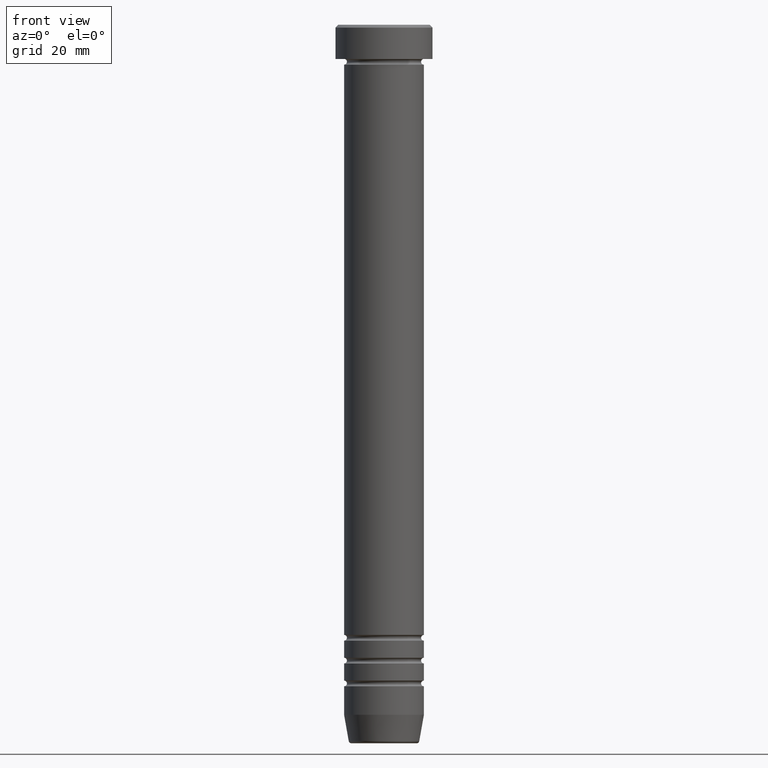
[diagram: clean part render]
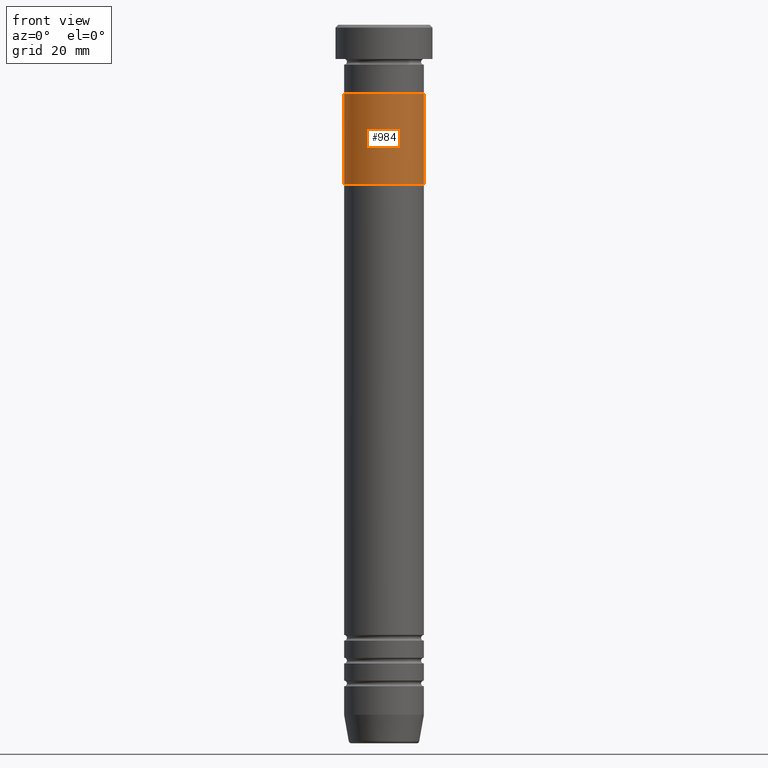
[diagram: same view with one face highlighted and labeled with its STEP entity id]
A machine part, front view. The second image highlights one B-rep face of the part: STEP entity #984.
In plain terms, the highlighted cylindrical surface (partial cylindrical patch) has radius 7 mm, axis along (-0, -0, 1).
Its self-contained STEP definition (entity closure, byte-faithful):
#49 = VERTEX_POINT ( 'NONE', #450 ) ;
#62 = EDGE_CURVE ( 'NONE', #1084, #919, #855, .T. ) ;
#78 = DIRECTION ( 'NONE',  ( 0.000000000000000000, 0.000000000000000000, -1.000000000000000000 ) ) ;
#95 = CARTESIAN_POINT ( 'NONE',  ( 0.000000000000000000, 0.000000000000000000, -28.00000000000000000 ) ) ;
#125 = VECTOR ( 'NONE', #870, 1000.000000000000000 ) ;
#196 = DIRECTION ( 'NONE',  ( -1.000000000000000000, 0.000000000000000000, 0.000000000000000000 ) ) ;
#197 = EDGE_CURVE ( 'NONE', #451, #1084, #1105, .T. ) ;
#202 = DIRECTION ( 'NONE',  ( 0.000000000000000000, 0.000000000000000000, -1.000000000000000000 ) ) ;
#215 = DIRECTION ( 'NONE',  ( -0.000000000000000000, -0.000000000000000000, 1.000000000000000000 ) ) ;
#312 = CARTESIAN_POINT ( 'NONE',  ( 6.999999999999999112, 0.000000000000000000, -28.00000000000000000 ) ) ;
#313 = ORIENTED_EDGE ( 'NONE', *, *, #591, .F. ) ;
#352 = AXIS2_PLACEMENT_3D ( 'NONE', #1121, #78, #891 ) ;
#417 = CARTESIAN_POINT ( 'NONE',  ( -6.999999999999999112, 8.572527594031472204E-16, -28.00000000000000000 ) ) ;
#450 = CARTESIAN_POINT ( 'NONE',  ( -6.999999999999999112, 8.572527594031472204E-16, -28.00000000000000000 ) ) ;
#451 = VERTEX_POINT ( 'NONE', #978 ) ;
#491 = CARTESIAN_POINT ( 'NONE',  ( 6.999999999999999112, 0.000000000000000000, -12.00000000000000000 ) ) ;
#492 = CIRCLE ( 'NONE', #827, 6.999999999999999112 ) ;
#510 = CARTESIAN_POINT ( 'NONE',  ( 0.000000000000000000, 0.000000000000000000, -28.00000000000000000 ) ) ;
#569 = DIRECTION ( 'NONE',  ( 1.000000000000000000, 0.000000000000000000, 0.000000000000000000 ) ) ;
#591 = EDGE_CURVE ( 'NONE', #451, #49, #492, .T. ) ;
#595 = CYLINDRICAL_SURFACE ( 'NONE', #1075, 6.999999999999999112 ) ;
#603 = EDGE_LOOP ( 'NONE', ( #1056, #313, #1010, #898 ) ) ;
#683 = FACE_OUTER_BOUND ( 'NONE', #603, .T. ) ;
#779 = EDGE_CURVE ( 'NONE', #49, #919, #953, .T. ) ;
#827 = AXIS2_PLACEMENT_3D ( 'NONE', #95, #202, #196 ) ;
#855 = CIRCLE ( 'NONE', #352, 6.999999999999999112 ) ;
#870 = DIRECTION ( 'NONE',  ( -0.000000000000000000, -0.000000000000000000, 1.000000000000000000 ) ) ;
#891 = DIRECTION ( 'NONE',  ( -1.000000000000000000, 0.000000000000000000, 0.000000000000000000 ) ) ;
#898 = ORIENTED_EDGE ( 'NONE', *, *, #62, .T. ) ;
#919 = VERTEX_POINT ( 'NONE', #995 ) ;
#952 = DIRECTION ( 'NONE',  ( -0.000000000000000000, -0.000000000000000000, 1.000000000000000000 ) ) ;
#953 = LINE ( 'NONE', #417, #1015 ) ;
#978 = CARTESIAN_POINT ( 'NONE',  ( 6.999999999999999112, 0.000000000000000000, -28.00000000000000000 ) ) ;
#984 = ADVANCED_FACE ( 'NONE', ( #683 ), #595, .T. ) ;
#995 = CARTESIAN_POINT ( 'NONE',  ( -6.999999999999999112, 8.572527594031472204E-16, -12.00000000000000000 ) ) ;
#1010 = ORIENTED_EDGE ( 'NONE', *, *, #197, .T. ) ;
#1015 = VECTOR ( 'NONE', #952, 1000.000000000000000 ) ;
#1056 = ORIENTED_EDGE ( 'NONE', *, *, #779, .F. ) ;
#1075 = AXIS2_PLACEMENT_3D ( 'NONE', #510, #215, #569 ) ;
#1084 = VERTEX_POINT ( 'NONE', #491 ) ;
#1105 = LINE ( 'NONE', #312, #125 ) ;
#1121 = CARTESIAN_POINT ( 'NONE',  ( 0.000000000000000000, 0.000000000000000000, -12.00000000000000000 ) ) ;